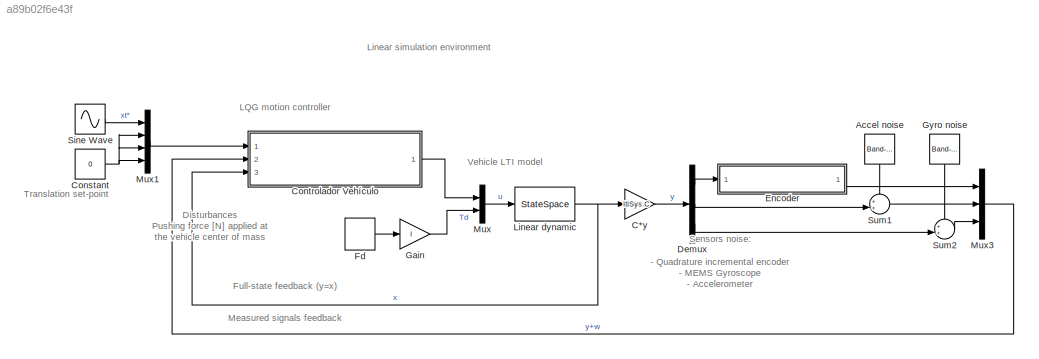
MODEL slx_a89b02f6e43f
KIND model
CONFIG AbsTol = auto
CONFIG EnableMultiTasking = off
CONFIG FixedStep = auto
CONFIG MaxStep = auto
CONFIG MinStep = auto
CONFIG RelTol = 1e-3
CONFIG SampleTimeConstraint = Unconstrained
CONFIG SolverName = VariableStepAuto
CONFIG StartTime = 0.0
CONFIG StopTime = 25
BLOCK [Reference] Accel noise  REF=simulink/Sources/Band-Limited
White Noise
  NameLocation = top
  Ports = [0, 1]
  SourceBlock = simulink/Sources/Band-Limited\nWhite Noise
  SourceProductBaseCode = SL
  SourceType = Band-Limited White Noise.
BLOCK [Gain] C*y
  Gain = ltiSys.C
  Multiplication = Matrix(K*u)
BLOCK [Constant] Constant
  Value = 0
BLOCK [ModelReference] Controlador Vehículo
  ModelNameDialog = MotionController.slx
  ModelReferenceVersion = 1.31
  Ports = [3, 1]
BLOCK [Demux] Demux
  Outputs = 3
  Ports = [1, 3]
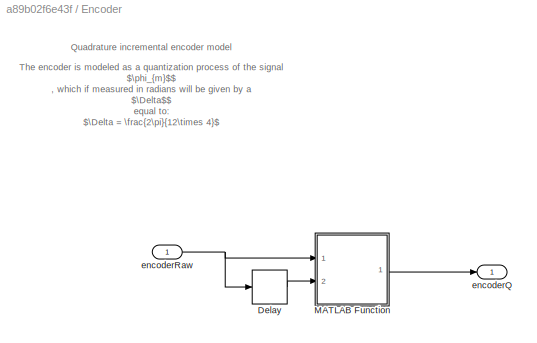
BLOCK [SubSystem] Encoder
  NameLocation = top
  Ports = [1, 1]
  RequestExecContextInheritance = off
BLOCK [Delay] Encoder/Delay
  DelayLength = 1
  InputPortMap = u0
  Ports = [1, 1]
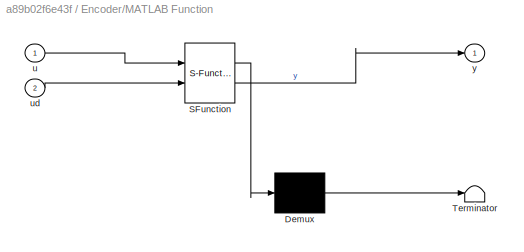
BLOCK [SubSystem] Encoder/MATLAB Function
  ErrorFcn = Stateflow.Translate.translate
  PermitHierarchicalResolution = ExplicitOnly
  Ports = [2, 1]
  RequestExecContextInheritance = off
  SFBlockType = MATLAB Function
  TreatAsAtomicUnit = on
BLOCK [Demux] Encoder/MATLAB Function/ Demux 
  Outputs = 1
  Ports = [1, 1]
BLOCK [S-Function] Encoder/MATLAB Function/ SFunction 
  EnableBusSupport = on
  FunctionName = sf_sfun
  Parameters = QuadratureEncoder
  PortCounts = [2 2]
  Ports = [2, 2]
  SFcnIsStateOwnerBlock = off
  SFunctionDeploymentMode = off
  Tag = Stateflow S-Function 3
BLOCK [Terminator] Encoder/MATLAB Function/ Terminator 
BLOCK [Inport] Encoder/MATLAB Function/u
BLOCK [Inport] Encoder/MATLAB Function/ud
  Port = 2
BLOCK [Outport] Encoder/MATLAB Function/y
BLOCK [Outport] Encoder/encoderQ
BLOCK [Inport] Encoder/encoderRaw
BLOCK [DiscretePulseGenerator] Fd
  Amplitude = 0
  Period = 10
  Ports = [0, 1]
  PulseType = Time based
  PulseWidth = 5
BLOCK [Gain] Gain
  Gain = l
BLOCK [Reference] Gyro noise  REF=simulink/Sources/Band-Limited
White Noise
  NameLocation = top
  Ports = [0, 1]
  SourceBlock = simulink/Sources/Band-Limited\nWhite Noise
  SourceProductBaseCode = SL
  SourceType = Band-Limited White Noise.
BLOCK [StateSpace] Linear dynamic
  A = ltiSys.A
  B = ltiSys.B
  C = eye(4)
  D = [0, 0;\n0, 0; 0, 0; 0, 0]
  InitialCondition = [0; deg2rad(0); 0; 0]
  Ports = [1, 1]
BLOCK [Mux] Mux
  DisplayOption = bar
  Inputs = 2
  Ports = [2, 1]
BLOCK [Mux] Mux1
  DisplayOption = bar
  Ports = [4, 1]
BLOCK [Mux] Mux3
  DisplayOption = bar
  Inputs = 3
  Ports = [3, 1]
BLOCK [Sin] Sine Wave
  Amplitude = 0.5
  Frequency = 2*pi/15
  Ports = [0, 1]
  SampleTime = 0
BLOCK [Sum] Sum1
  Inputs = ++|
  Ports = [2, 1]
BLOCK [Sum] Sum2
  Inputs = ++|
  Ports = [2, 1]
ANNOTATION (root): Disturbances Pushing force [N] applied at the vehicle center of mass
ANNOTATION (root): LQG motion controller
ANNOTATION (root): Sensors noise: - Quadrature incremental encoder - MEMS Gyroscope - Accelerometer
ANNOTATION (root): Translation set-point
ANNOTATION (root): Vehicle LTI model
ANNOTATION (root): Linear simulation environment
ANNOTATION (root): Full-state feedback (y=x)
ANNOTATION (root): Measured signals feedback
ANNOTATION Encoder: Quadrature incremental encoder model
ANNOTATION Encoder: The encoder is modeled as a quantization process of the signal $\phi_{m}$$ , which if measured in radians will be given by a $\Delta$$ equal to: $\Delta = \frac{2\pi}{12\times 4}$ The following quantization function Q is proposed: $Q(\phi_{m}) = \begin{cases} \Delta \cdot \lceil \frac{\phi_{m}}{\Delta} \rceil & \quad \text{si } \dot{\phi}_{m} < 0 \\ \phi_{m} & \quad \text{si } \dot{\phi}_{m} = 0 \...<+105ch>
LINE Accel noise:1 -> Sum1:1
LINE C*y:1 -> Demux:1
NET Constant:1 -> Mux1:2, Mux1:3, Mux1:4
LINE Controlador Vehículo:1 -> Mux:1
LINE Demux:1 -> Encoder:1
LINE Demux:2 -> Sum1:2
LINE Demux:3 -> Sum2:2
LINE Encoder/Delay:1 -> Encoder/MATLAB Function:2
LINE Encoder/MATLAB Function:1 -> Encoder/encoderQ:1
NET Encoder/encoderRaw:1 -> Encoder/Delay:1, Encoder/MATLAB Function:1
LINE Encoder:1 -> Mux3:1
LINE Fd:1 -> Gain:1
LINE Gain:1 -> Mux:2
LINE Gyro noise:1 -> Sum2:1
NET Linear dynamic:1 -> C*y:1, Controlador Vehículo:3
LINE Mux1:1 -> Controlador Vehículo:1
LINE Mux3:1 -> Controlador Vehículo:2
LINE Mux:1 -> Linear dynamic:1
LINE Sine Wave:1 -> Mux1:1
LINE Sum1:1 -> Mux3:2
LINE Sum2:1 -> Mux3:3
note: NET lines group one-source signal fan-out (src -> all destinations, sorted); 1:1 wires keep LINE
CHART Encoder/MATLAB Function states=1 transitions=1
  STATE_LABEL 'eML_blk_kernel()'
  STATE_LABEL 'SCRIPT:\nfunction y = Q(u, ud, QuadratureEncoder)\ndelta = 2*pi/(QuadratureEncoder.PPR*QuadratureEncoder.ResolutionMult);\ny = u/delta;\ndiff = u - ud;\nif diff < 0\n    y = ceil(y);\nelseif diff > 0\n    y = floor(y);\nend\ny = y*delta;\n'
CHART  states=0 transitions=0
